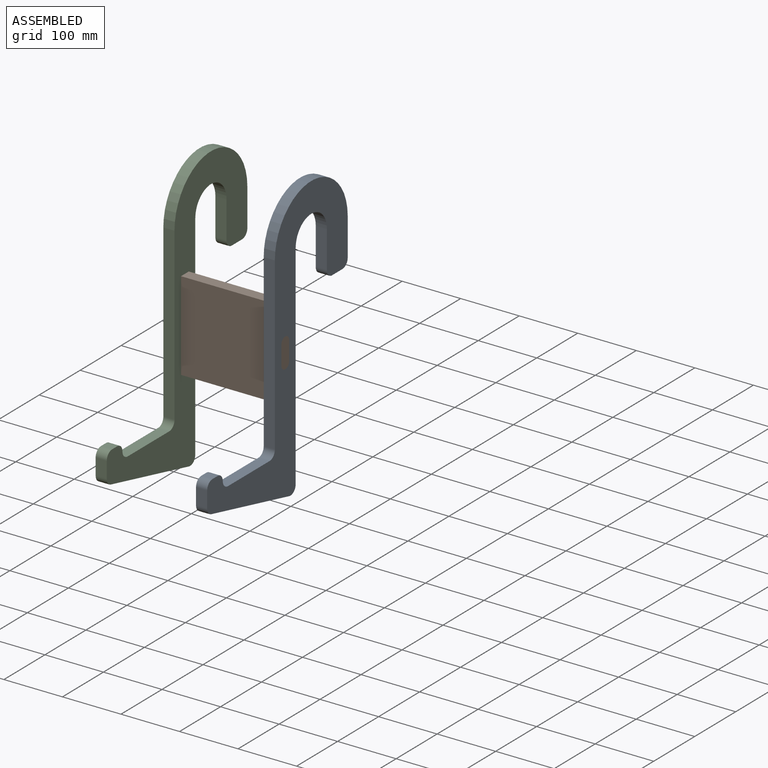
[diagram: assembled view]
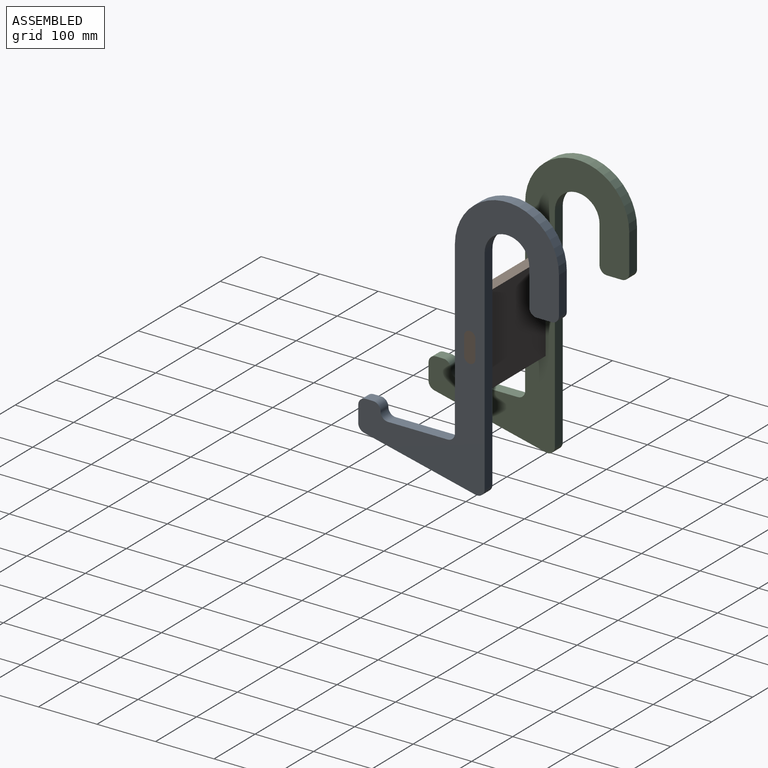
[diagram: assembled view, second angle]
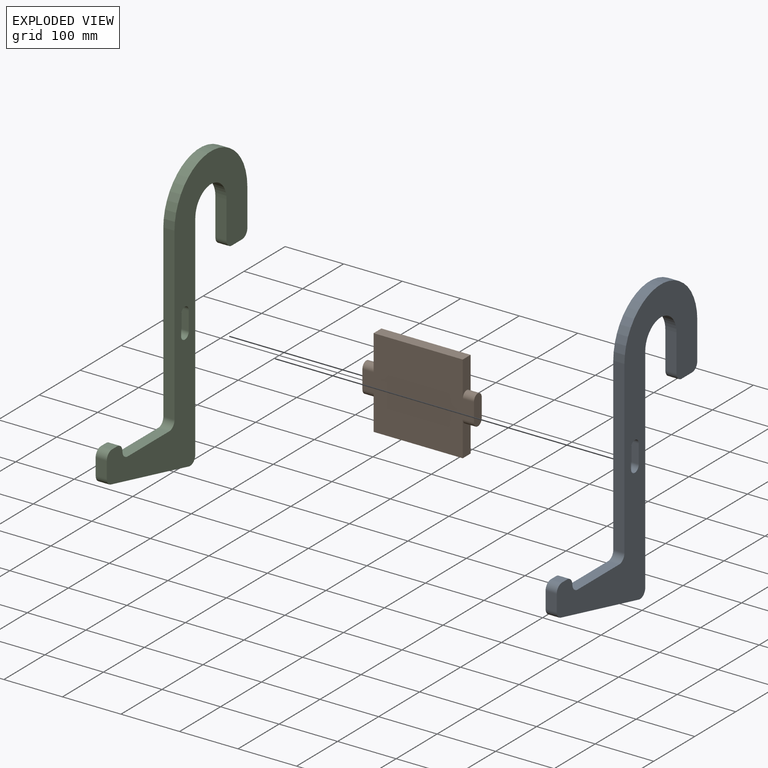
[diagram: exploded view]
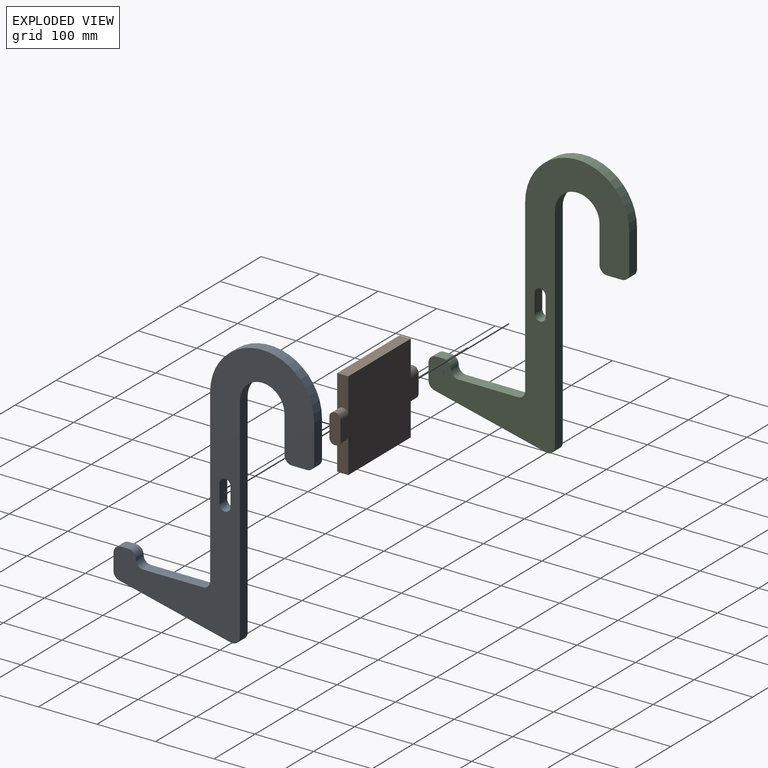
[diagram: exploded view, second angle]
ASSEMBLY  parts=3 mates=2
PART A: 25 faces, bbox 19.1x342.9x466.6 mm
  f0: plane 31.75x19.05mm, normal (0,1,0), area 604.8mm2, adj f1,f14,f15,f16
  f1: cylinder r=9.53mm len=19.05mm, axis (-1,0,0), area 570mm2, adj f0,f2,f15,f16
  f2: plane 31.75x19.05mm, normal (0,-1,0), area 604.8mm2, adj f1,f14,f15,f16
  f3: cylinder r=38.1mm len=76.2mm, axis (-1,0,0), area 2280.2mm2, adj f4,f13,f15,f16
  f4: plane 63.5x19.05mm, normal (0,-1,0), area 1209.7mm2, adj f3,f15,f16,f17
  f5: plane 25.4x19.05mm, normal (0,0,-1), area 483.9mm2, adj f15,f16,f17,f18
  f6: plane 63.5x19.05mm, normal (0,1,0), area 1209.7mm2, adj f7,f15,f16,f18
  f7: cylinder r=88.9mm len=177.8mm, axis (-1,0,0), area 5320.4mm2, adj f6,f8,f15,f16
  f8: plane 292.1x19.05mm, normal (0,-1,0), area 5564.5mm2, adj f7,f15,f16,f19
  f9: plane 101.6x19.05mm, normal (0,0,1), area 1935.5mm2, adj f15,f16,f19,f21
  f10: plane 19.05x12.7mm, normal (0,0,1), area 241.9mm2, adj f15,f16,f20,f22
  f11: plane 28.04x19.05mm, normal (0,-1,0), area 534.2mm2, adj f15,f16,f22,f23
  f12: plane 190.5x44.82mm, normal (0,-0.23,-0.97), area 3728.1mm2, adj f15,f16,f23,f24
  f13: plane 364.97x19.05mm, normal (0,1,0), area 6952.6mm2, adj f3,f15,f16,f24
  f14: cylinder r=9.53mm len=19.05mm, axis (-1,0,0), area 570mm2, adj f0,f2,f15,f16
  f15: plane 466.57x342.9mm, normal (1,0,0), area 40387.3mm2, adj f0,f1,f2,f3,f4,f5,f6,f7
  f16: plane 466.57x342.9mm, normal (-1,0,0), area 40387.3mm2, adj f0,f1,f2,f3,f4,f5,f6,f7
  f17: cylinder r=12.7mm len=19.05mm, axis (-1,0,0), area 380mm2, adj f4,f5,f15,f16
  f18: cylinder r=12.7mm len=19.05mm, axis (-1,0,0), area 380mm2, adj f5,f6,f15,f16
  f19: cylinder r=12.7mm len=19.05mm, axis (1,0,0), area 380mm2, adj f8,f9,f15,f16
  f20: cylinder r=12.7mm len=19.05mm, axis (-1,0,0), area 380mm2, adj f10,f15,f16,f21
  f21: cylinder r=12.7mm len=19.05mm, axis (1,0,0), area 380mm2, adj f9,f15,f16,f20
  f22: cylinder r=12.7mm len=19.05mm, axis (-1,0,0), area 380mm2, adj f10,f11,f15,f16
  f23: cylinder r=12.7mm len=19.05mm, axis (-1,0,0), area 324.1mm2, adj f11,f12,f15,f16
  f24: cylinder r=12.7mm len=19.05mm, axis (-1,0,0), area 435.9mm2, adj f12,f13,f15,f16
PART B: 14 faces, bbox 190.5x19.1x152.4 mm
  f0: plane 60.33x19.05mm, normal (1,0,0), area 1006.7mm2, adj f2,f4,f5,f11
  f1: plane 60.33x19.05mm, normal (-1,0,0), area 1006.7mm2, adj f2,f4,f5,f10
  f2: plane 190.5x152.4mm, normal (0,-1,0), area 24435.4mm2, adj f0,f1,f3,f5,f6,f7,f8,f9
  f3: plane 152.4x19.05mm, normal (0,0,-1), area 2903.2mm2, adj f2,f4,f6,f7
  f4: plane 190.5x152.4mm, normal (0,1,0), area 24435.4mm2, adj f0,f1,f3,f5,f6,f7,f8,f9
  f5: plane 152.4x19.05mm, normal (0,0,1), area 2903.2mm2, adj f0,f1,f2,f4
  f6: plane 60.33x19.05mm, normal (1,0,0), area 1006.7mm2, adj f2,f3,f4,f12
  f7: plane 60.33x19.05mm, normal (-1,0,0), area 1006.7mm2, adj f2,f3,f4,f9
  f8: plane 50.8x19.05mm, normal (-1,0,0), area 889.9mm2, adj f2,f4,f9,f10
  f9: cylinder r=9.53mm len=19.05mm, axis (1,0,0), area 570mm2, adj f2,f4,f7,f8
  f10: cylinder r=9.53mm len=19.05mm, axis (1,0,0), area 570mm2, adj f1,f2,f4,f8
  f11: cylinder r=9.53mm len=19.05mm, axis (1,0,0), area 570mm2, adj f0,f2,f4,f13
  f12: cylinder r=9.53mm len=19.05mm, axis (1,0,0), area 570mm2, adj f2,f4,f6,f13
  f13: plane 50.8x19.05mm, normal (1,0,0), area 889.9mm2, adj f2,f4,f11,f12
PART C: same geometry as A
PLACE A t=(171.45,63.5,136.52)mm
PLACE B t=(19.05,-9.52,-15.88)mm
PLACE C t=(0,63.5,136.52)mm
MATE fastened B.f10 <-> C.f1  axis (-1,0,0) through (0,0,0)mm
MATE fastened B.f10 <-> A.f1  axis (1,0,0) through (190.5,0,0)mm
